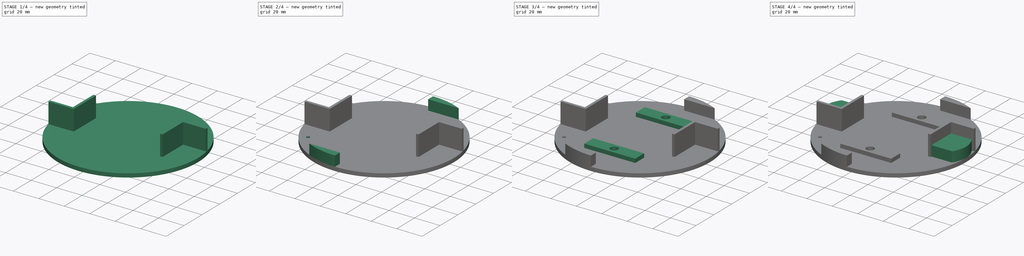
[diagram: build sequence overview — one tinted view per stage of 4, left to right]
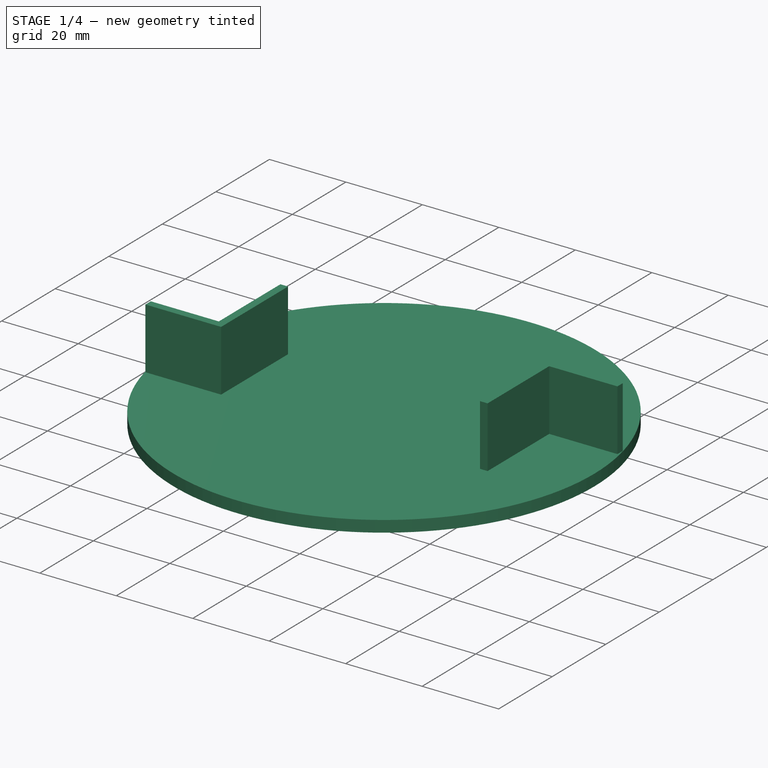
[diagram: stage 1 of 4 — iso view after this stage's code; geometry added in this stage tinted green]
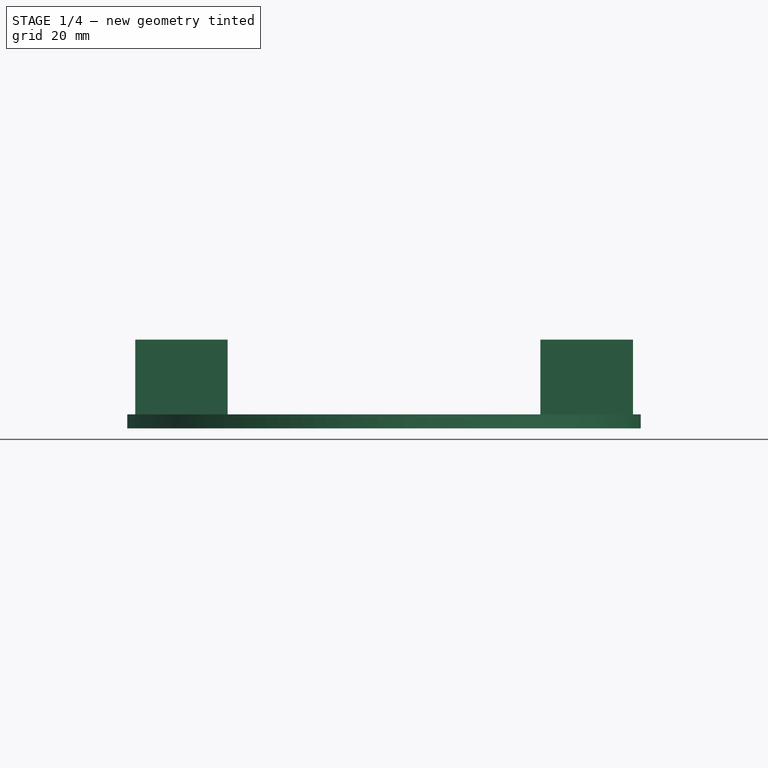
[diagram: stage 1 of 4 — front view after this stage's code; geometry added in this stage tinted green]
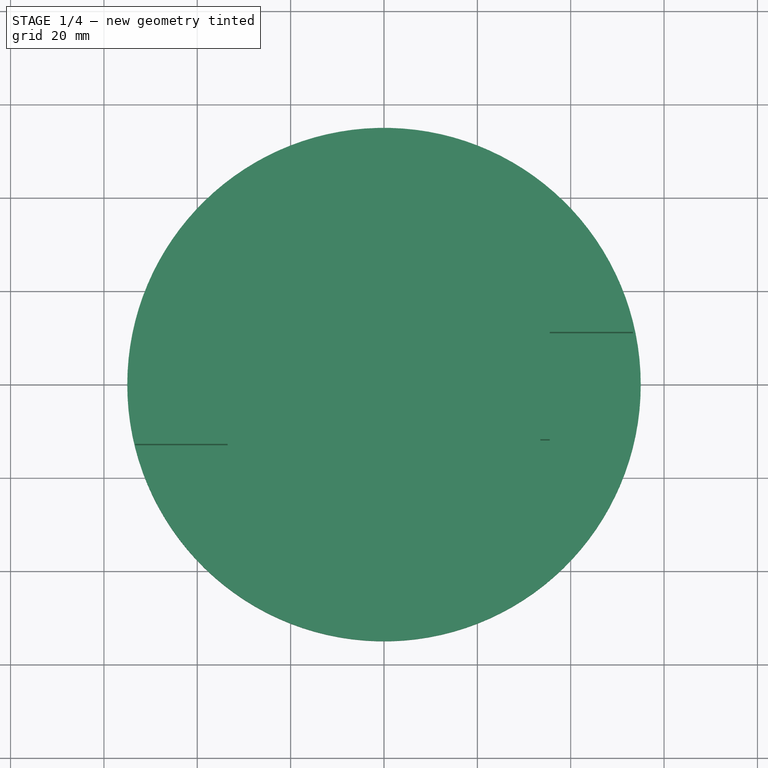
[diagram: stage 1 of 4 — top view after this stage's code; geometry added in this stage tinted green]
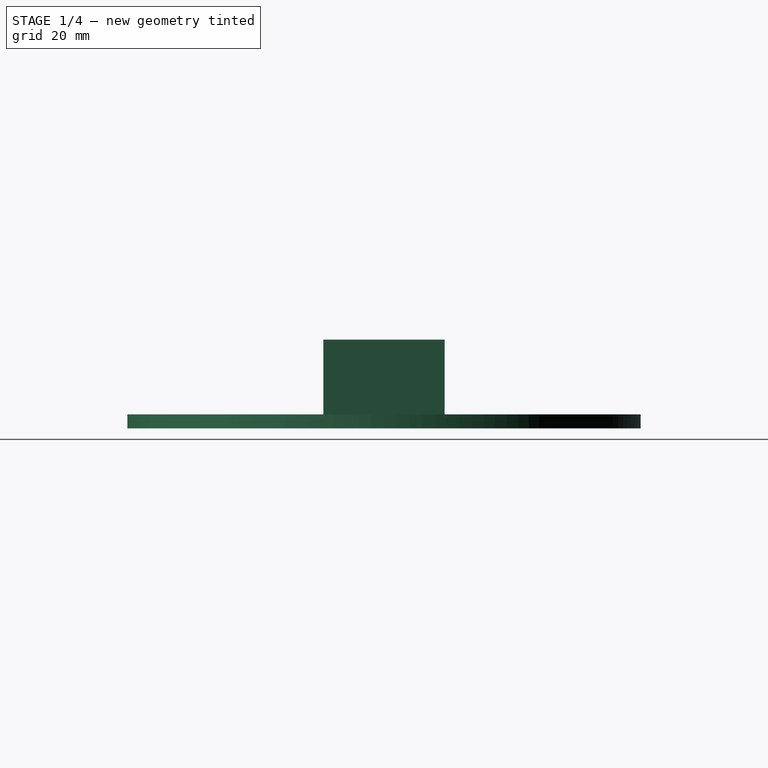
[diagram: stage 1 of 4 — right view after this stage's code; geometry added in this stage tinted green]
FCSTD DOCUMENT  (FreeCAD 0.21R33668 +26 (Git))
Label: board_bot
License: All rights reserved
LicenseURL: https://en.wikipedia.org/wiki/All_rights_reserved
objects: Sketcher::SketchObject×8, PartDesign::Pad×5, PartDesign::Pocket×3, PartDesign::Mirrored×1, PartDesign::Body×1
note: 26 computed .brp shape members not serialized (recipe doc carries the construction recipe); baked Part::Feature solids carry a one-line shape summary decoded from their .brp

FEATURE [Sketcher::SketchObject] Sketch
  FullyConstrained = false
  MapMode = 5
  Support = -> [XY_Plane]
  sketch-geometry (2):
    g0: Circle CenterX=0 CenterY=0 CenterZ=0 NormalX=0 NormalY=0 NormalZ=1 AngleXU=0 Radius=55
    g1: GeomPoint X=-46.4818 Y=29.4015 Z=0
  constraints (3):
    c: Coincident(g0,g-1)
    c: PointOnObject(g1,g0)
    c: Distance(g1,g0) = 55
FEATURE [PartDesign::Pad] Pad
  Direction = (0,0,1)
  Length = 3
  Length2 = 10
  Profile = -> Sketch
  ReferenceAxis = -> Sketch [N_Axis]
  Type = 0
FEATURE [Sketcher::SketchObject] Sketch001
  FullyConstrained = false
  MapMode = 5
  Placement = pos=(0,0,3) rot=(0,0,1;0rad)
  Support = -> [Pad]
  sketch-geometry (27):
    g0: LineSegment StartX=35.5 StartY=11 StartZ=0 EndX=35.5 EndY=-54 EndZ=0
    g1: LineSegment StartX=35.5 StartY=-54 StartZ=0 EndX=55 EndY=-54 EndZ=0
    g2: LineSegment StartX=55 StartY=-54 StartZ=0 EndX=55 EndY=11 EndZ=0
    g3: LineSegment StartX=55 StartY=11 StartZ=0 EndX=35.5 EndY=11 EndZ=0
    g4: GeomPoint X=35.5 Y=0 Z=0
    g5: LineSegment StartX=0 StartY=0 StartZ=0 EndX=35.5 EndY=0 EndZ=0
    g6: LineSegment StartX=33.5 StartY=0 StartZ=0 EndX=33.5 EndY=13 EndZ=0
    g7: LineSegment StartX=33.5 StartY=13 StartZ=0 EndX=53.3454 EndY=13 EndZ=0
    g8: LineSegment StartX=53.3454 StartY=13 StartZ=0 EndX=53.3454 EndY=11 EndZ=0
    g9: LineSegment StartX=53.3454 StartY=11 StartZ=0 EndX=35.5 EndY=11 EndZ=0
    g10: LineSegment StartX=35.5 StartY=11 StartZ=0 EndX=35.5 EndY=-0.0056844 EndZ=0
    g11: LineSegment StartX=-55 StartY=54 StartZ=0 EndX=-35.5 EndY=54 EndZ=0
    g12: LineSegment StartX=-35.5 StartY=54 StartZ=0 EndX=-35.5 EndY=-11 EndZ=0
    g13: LineSegment StartX=-35.5 StartY=-11 StartZ=0 EndX=-55 EndY=-11 EndZ=0
    g14: LineSegment StartX=-55 StartY=-11 StartZ=0 EndX=-55 EndY=54 EndZ=0
    g15: LineSegment StartX=-35.5 StartY=0 StartZ=0 EndX=0 EndY=0 EndZ=0
    g16: LineSegment StartX=-33.5 StartY=0 StartZ=0 EndX=-33.5 EndY=-13 EndZ=0
    g17: LineSegment StartX=-33.5 StartY=-13 StartZ=0 EndX=-53.2936 EndY=-13 EndZ=0
    g18: LineSegment StartX=-53.2936 StartY=-13 StartZ=0 EndX=-53.2936 EndY=-11 EndZ=0
    g19: LineSegment StartX=-53.2936 StartY=-11 StartZ=0 EndX=-35.5 EndY=-11 EndZ=0
    g20: LineSegment StartX=-35.5 StartY=-11 StartZ=0 EndX=-35.5 EndY=0.00121246 EndZ=0
    g21: LineSegment StartX=-33.5 StartY=0 StartZ=0 EndX=-33.5 EndY=12 EndZ=0
    g22: LineSegment StartX=-35.5 StartY=0.00121246 StartZ=0 EndX=-35.5 EndY=12 EndZ=0
    g23: LineSegment StartX=-35.5 StartY=12 StartZ=0 EndX=-33.5 EndY=12 EndZ=0
    g24: LineSegment StartX=33.5 StartY=0 StartZ=0 EndX=33.5 EndY=-12 EndZ=0
    g25: LineSegment StartX=35.5 StartY=-0.0056844 StartZ=0 EndX=35.5 EndY=-12 EndZ=0
    g26: LineSegment StartX=33.5 StartY=-12 StartZ=0 EndX=35.5 EndY=-12 EndZ=0
  constraints (73):
    c: Vertical(g0)
    c: Coincident(g1,g0)
    c: Horizontal(g1)
    c: Coincident(g2,g1)
    c: Vertical(g2)
    c: Coincident(g3,g2)
    c: Coincident(g3,g0)
    c: Horizontal(g3)
    c: Distance(g3) = 19.5
    c: Distance(g2) = 65
    c: PointOnObject(g4,g0)
    c: Distance(g0,g4) = 11
    c: Coincident(g5,g-1)
    c: Coincident(g5,g4)
    c: Horizontal(g5)
    c: Distance(g5) = 35.5
    c: PointOnObject(g6,g5)
    c: Vertical(g6)
    c: Coincident(g7,g6)
    c: Horizontal(g7)
    c: Coincident(g8,g7)
    c: PointOnObject(g8,g3)
    c: Vertical(g8)
    c: Coincident(g9,g8)
    c: Coincident(g9,g0)
    c: Coincident(g10,g9)
    c: Distance(g8) = 2
    c: Coincident(g11,g12)
    c: Coincident(g12,g13)
    c: Coincident(g13,g14)
    c: Coincident(g14,g11)
    c: Horizontal(g11)
    c: Horizontal(g13)
    c: Vertical(g12)
    c: Vertical(g14)
    c: Distance(g14) = 65
    c: Distance(g11) = 19.5
    c: PointOnObject(g15,g12)
    c: Coincident(g15,g5)
    c: Horizontal(g15)
    c: Distance(g15) = 35.5
    c: Distance(g15,g12) = 11
    c: PointOnObject(g16,g15)
    c: Vertical(g16)
    c: Coincident(g17,g16)
    c: Horizontal(g17)
    c: Coincident(g18,g17)
    c: PointOnObject(g18,g13)
    c: Vertical(g18)
    c: Distance(g18) = 2
    c: Coincident(g19,g18)
    c: Coincident(g19,g12)
    c: Coincident(g20,g19)
    c: Coincident(g21,g16)
    c: Vertical(g21)
    c: Coincident(g22,g20)
    c: PointOnObject(g22,g12)
    c: Vertical(g22)
    c: Distance(g20,g16) = 2
    c: Coincident(g23,g22)
    c: Coincident(g23,g21)
    c: Horizontal(g23)
    c: Distance(g21) = 12
    c: Distance(g6,g10) = 2
    c: Coincident(g24,g6)
    c: Vertical(g24)
    c: Coincident(g25,g10)
    c: PointOnObject(g25,g0)
    c: Vertical(g25)
    c: Coincident(g26,g24)
    c: Coincident(g26,g25)
    c: Horizontal(g26)
    c: Distance(g24) = 12
FEATURE [PartDesign::Pad] Pad001
  BaseFeature = -> Pad
  Direction = (0,0,1)
  Length = 16
  Length2 = 10
  Profile = -> Sketch001
  ReferenceAxis = -> Sketch001 [N_Axis]
  Type = 0
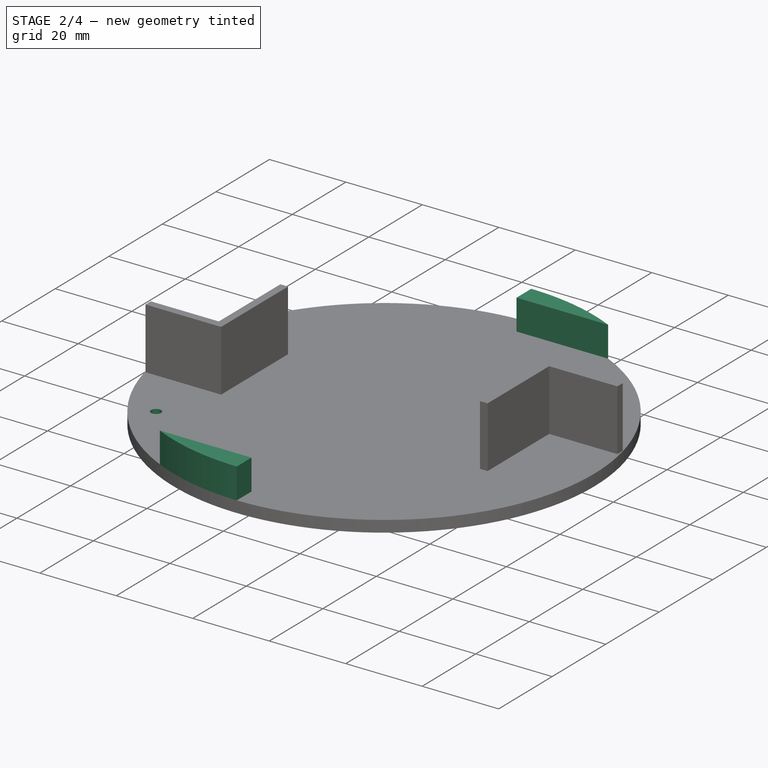
[diagram: stage 2 of 4 — iso view after this stage's code; geometry added in this stage tinted green]
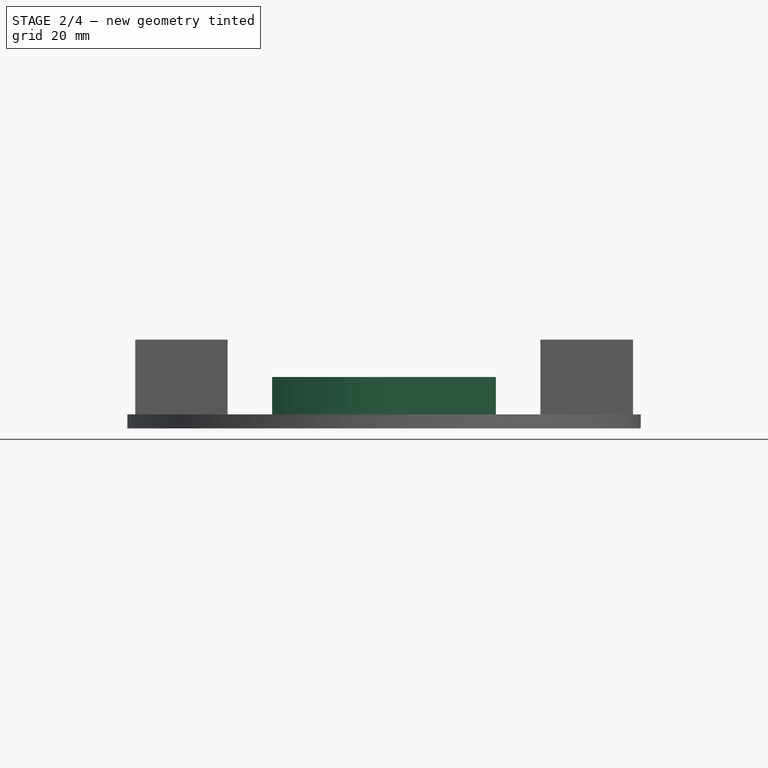
[diagram: stage 2 of 4 — front view after this stage's code; geometry added in this stage tinted green]
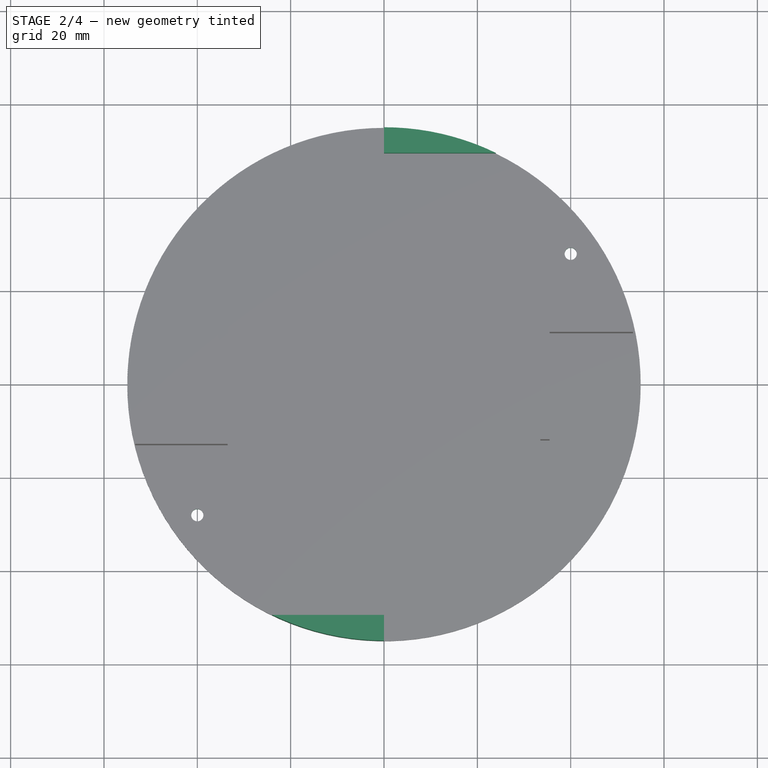
[diagram: stage 2 of 4 — top view after this stage's code; geometry added in this stage tinted green]
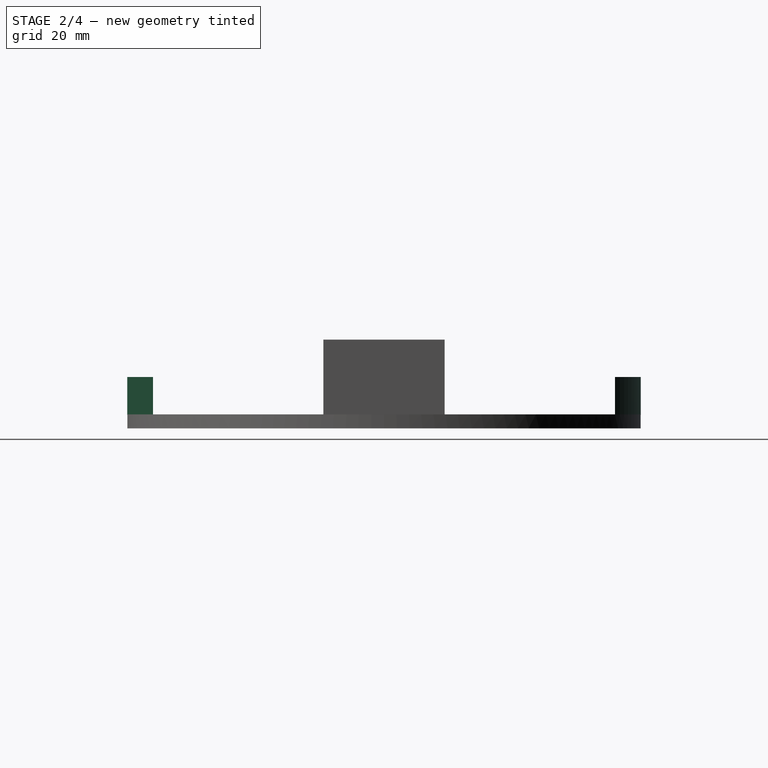
[diagram: stage 2 of 4 — right view after this stage's code; geometry added in this stage tinted green]
FEATURE [Sketcher::SketchObject] Sketch002
  FullyConstrained = false
  MapMode = 5
  Placement = pos=(0,0,3) rot=(0,0,1;0rad)
  Support = -> [Pad001]
  sketch-geometry (15):
    g0: LineSegment StartX=-32.5 StartY=49.5 StartZ=0 EndX=32.5 EndY=49.5 EndZ=0
    g1: LineSegment StartX=32.5 StartY=49.5 StartZ=0 EndX=32.5 EndY=-49.5 EndZ=0
    g2: GeomPoint X=5.3126e-12 Y=49.5 Z=0
    g3: GeomPoint X=32.5 Y=0 Z=0
    g4: ArcOfCircle CenterX=0 CenterY=0 CenterZ=0 NormalX=0 NormalY=0 NormalZ=1 AngleXU=0 Radius=55 StartAngle=4.26136 EndAngle=4.71239
    g5: GeomPoint X=-0.260933 Y=-54.9994 Z=0
    g6: GeomPoint X=35.5 Y=0 Z=0
    g7: GeomPoint X=-35.5 Y=0 Z=0
    g8: ArcOfCircle CenterX=0 CenterY=0 CenterZ=0 NormalX=0 NormalY=0 NormalZ=1 AngleXU=0 Radius=55 StartAngle=1.11977 EndAngle=1.5708
    g9: GeomPoint X=0 Y=55 Z=0
    g10: LineSegment StartX=-23.9739 StartY=-49.5 StartZ=0 EndX=-1.07e-14 EndY=-49.5 EndZ=0
    g11: LineSegment StartX=-1.07e-14 StartY=-49.5 StartZ=0 EndX=-1.07e-14 EndY=-55 EndZ=0
    g12: LineSegment StartX=23.9739 StartY=49.5 StartZ=0 EndX=3.6e-15 EndY=49.5 EndZ=0
    g13: LineSegment StartX=3.6e-15 StartY=49.5 StartZ=0 EndX=3.6e-15 EndY=55 EndZ=0
    g14: LineSegment StartX=32.5 StartY=-49.5 StartZ=0 EndX=0 EndY=-49.5 EndZ=0
  constraints (37):
    c: Coincident(g0,g1)
    c: Horizontal(g0)
    c: Vertical(g1)
    c: Distance(g1) = 99
    c: Distance(g0) = 65
    c: PointOnObject(g2,g0)
    c: Distance(g-1,g2) = 49.5
    c: PointOnObject(g3,g1)
    c: PointOnObject(g3,g-1)
    c: Distance(g-1,g3) = 32.5
    c: Coincident(g4,g-1)
    c: PointOnObject(g5,g4)
    c: Distance(g5,g4) = 55
    c: PointOnObject(g6,g-1)
    c: Distance(g4,g6) = 35.5
    c: PointOnObject(g7,g-1)
    c: Distance(g7,g4) = 35.5
    c: Coincident(g8,g4)
    c: PointOnObject(g9,g8)
    c: Distance(g9,g4) = 55
    c: Coincident(g10,g4)
    c: Horizontal(g10)
    c: Coincident(g11,g10)
    c: Coincident(g11,g4)
    c: Vertical(g11)
    c: Coincident(g12,g8)
    c: Horizontal(g12)
    c: Coincident(g13,g12)
    c: Coincident(g13,g8)
    c: Vertical(g13)
    c: PointOnObject(g8,g-2)
    c: PointOnObject(g12,g0)
    c: Coincident(g14,g1)
    c: PointOnObject(g14,g-2)
    c: Horizontal(g14)
    c: PointOnObject(g10,g-2)
    c: PointOnObject(g10,g14)
FEATURE [PartDesign::Pad] Pad002
  BaseFeature = -> Pad001
  Direction = (0,0,1)
  Length = 8
  Length2 = 10
  Profile = -> Sketch002
  ReferenceAxis = -> Sketch002 [N_Axis]
  Type = 0
FEATURE [Sketcher::SketchObject] Sketch003
  FullyConstrained = false
  MapMode = 5
  Placement = pos=(0,0,3) rot=(0,0,1;0rad)
  Support = -> [Pad002]
  sketch-geometry (22):
    g0: Circle CenterX=-45 CenterY=-18 CenterZ=0 NormalX=0 NormalY=0 NormalZ=1 AngleXU=0 Radius=1.3
    g1: GeomPoint X=-45.1583 Y=-16.7097 Z=0
    g2: GeomPoint X=0 Y=-18 Z=0
    g3: LineSegment StartX=-45 StartY=-18 StartZ=0 EndX=0 EndY=-18 EndZ=0
    g4: Circle CenterX=45 CenterY=18 CenterZ=0 NormalX=0 NormalY=0 NormalZ=1 AngleXU=0 Radius=1.3
    g5: GeomPoint X=0 Y=18 Z=0
    g6: LineSegment StartX=0 StartY=18 StartZ=0 EndX=45 EndY=18 EndZ=0
    g7: GeomPoint X=43.9428 Y=18.7565 Z=0
    g8: Circle CenterX=-45 CenterY=-18 CenterZ=0 NormalX=0 NormalY=0 NormalZ=1 AngleXU=0 Radius=6
    g9: GeomPoint X=-50.7519 Y=-16.2924 Z=0
    g10: Circle CenterX=45 CenterY=18 CenterZ=0 NormalX=0 NormalY=0 NormalZ=1 AngleXU=0 Radius=6
    g11: GeomPoint X=50.6556 Y=20.0035 Z=0
    g12: Circle CenterX=40 CenterY=28 CenterZ=0 NormalX=0 NormalY=0 NormalZ=1 AngleXU=0 Radius=6
    g13: Circle CenterX=-40 CenterY=-28 CenterZ=0 NormalX=0 NormalY=0 NormalZ=1 AngleXU=0 Radius=6
    g14: GeomPoint X=35.6448 Y=32.127 Z=0
    g15: GeomPoint X=-34.8311 Y=-31.0467 Z=0
    g16: LineSegment StartX=-40 StartY=-28 StartZ=0 EndX=0 EndY=-28 EndZ=0
    g17: LineSegment StartX=40 StartY=28 StartZ=0 EndX=0 EndY=28 EndZ=0
    g18: Circle CenterX=-40 CenterY=-28 CenterZ=0 NormalX=0 NormalY=0 NormalZ=1 AngleXU=0 Radius=1.3
    g19: Circle CenterX=40 CenterY=28 CenterZ=0 NormalX=0 NormalY=0 NormalZ=1 AngleXU=0 Radius=1.3
    g20: GeomPoint X=-40.4398 Y=-29.2233 Z=0
    g21: GeomPoint X=39.2659 Y=29.0729 Z=0
  constraints (42):
    c: PointOnObject(g1,g0)
    c: PointOnObject(g2,g-2)
    c: Coincident(g3,g0)
    c: Coincident(g3,g2)
    c: Horizontal(g3)
    c: Distance(g3) = 45
    c: Distance(g1,g0) = 1.3
    c: Distance(g-1,g2) = 18
    c: PointOnObject(g5,g-2)
    c: Coincident(g6,g5)
    c: Coincident(g6,g4)
    c: Horizontal(g6)
    c: Distance(g6) = 45
    c: Distance(g5,g-1) = 18
    c: PointOnObject(g7,g4)
    c: Distance(g7,g4) = 1.3
    c: Coincident(g8,g0)
    c: PointOnObject(g9,g8)
    c: Distance(g9,g0) = 6
    c: Coincident(g10,g4)
    c: PointOnObject(g11,g10)
    c: Distance(g4,g11) = 6
    c: PointOnObject(g14,g12)
    c: PointOnObject(g15,g13)
    c: Distance(g13,g15) = 6
    c: Distance(g12,g14) = 6
    c: Coincident(g16,g13)
    c: PointOnObject(g16,g-2)
    c: Horizontal(g16)
    c: Coincident(g17,g12)
    c: PointOnObject(g17,g-2)
    c: Horizontal(g17)
    c: Distance(g17) = 40
    c: Distance(g17,g-1) = 28
    c: Distance(g-1,g16) = 28
    c: Distance(g16) = 40
    c: Coincident(g18,g13)
    c: Coincident(g19,g12)
    c: PointOnObject(g20,g18)
    c: Distance(g20,g13) = 1.3
    c: PointOnObject(g21,g19)
    c: Distance(g21,g12) = 1.3
FEATURE [PartDesign::Pocket] Pocket
  BaseFeature = -> Pad002
  Direction = (0,0,-1)
  Length = 5
  Length2 = 5
  Profile = -> Sketch003
  ReferenceAxis = -> Sketch003 [N_Axis]
  Type = 0
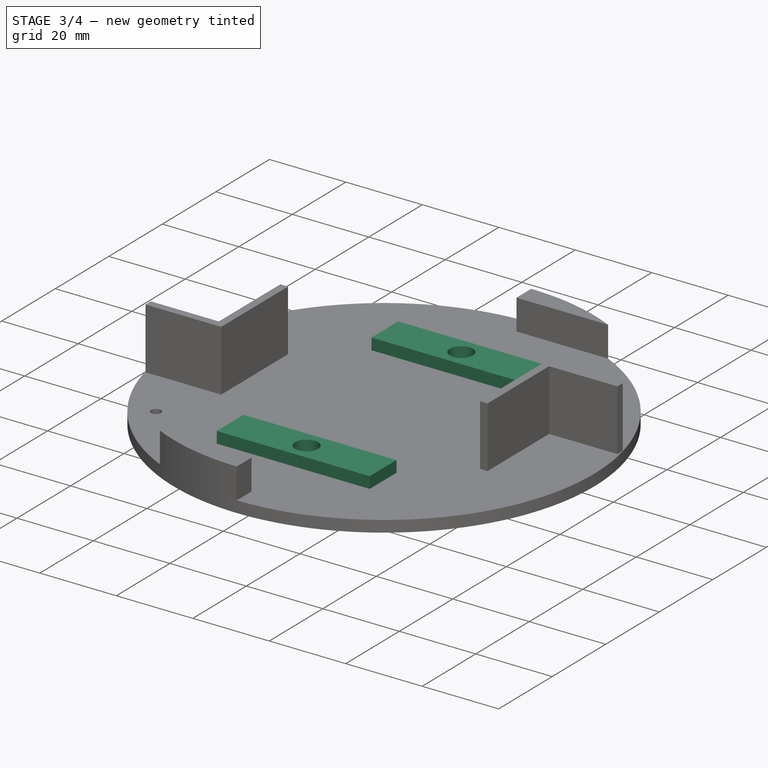
[diagram: stage 3 of 4 — iso view after this stage's code; geometry added in this stage tinted green]
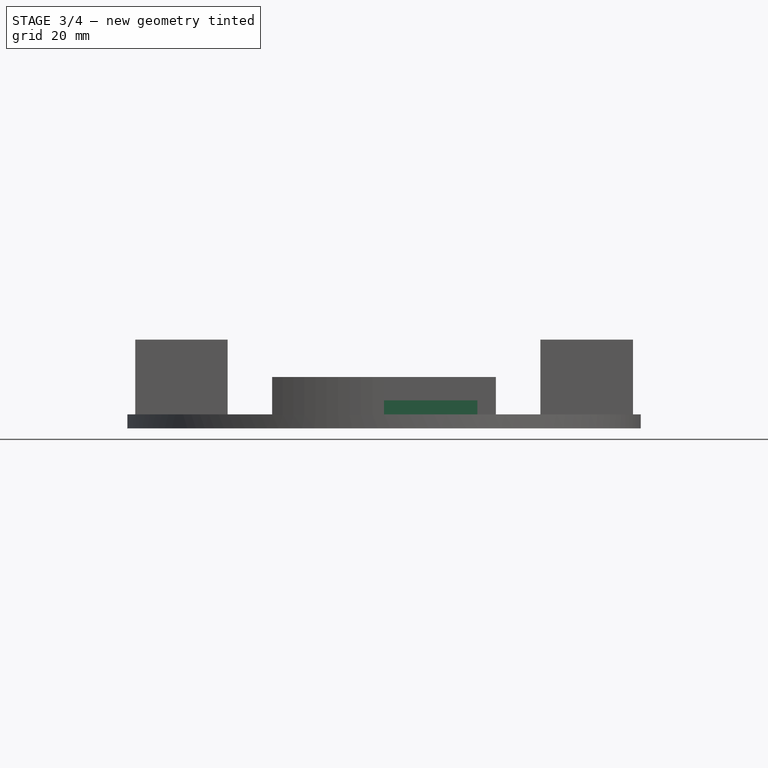
[diagram: stage 3 of 4 — front view after this stage's code; geometry added in this stage tinted green]
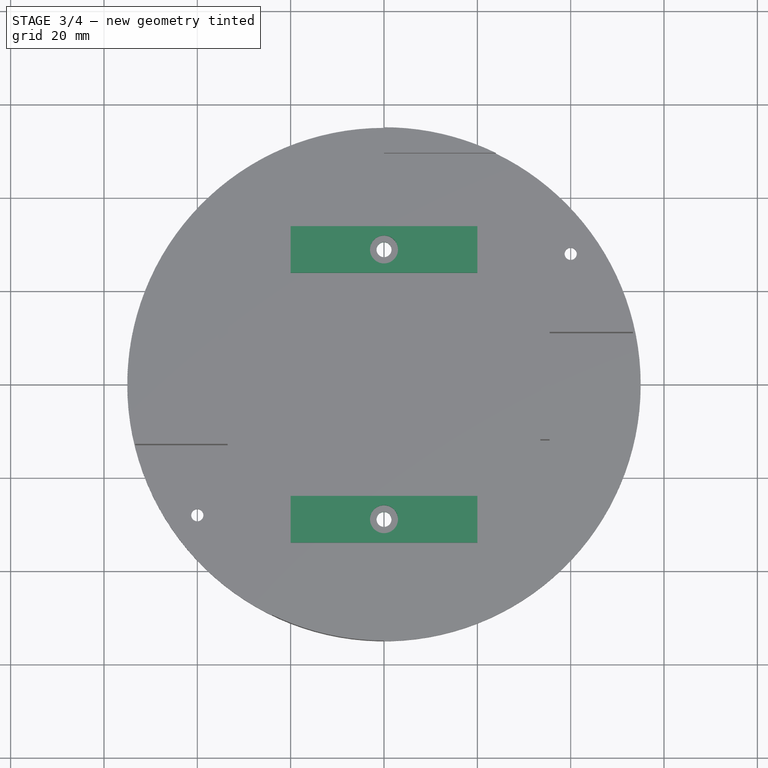
[diagram: stage 3 of 4 — top view after this stage's code; geometry added in this stage tinted green]
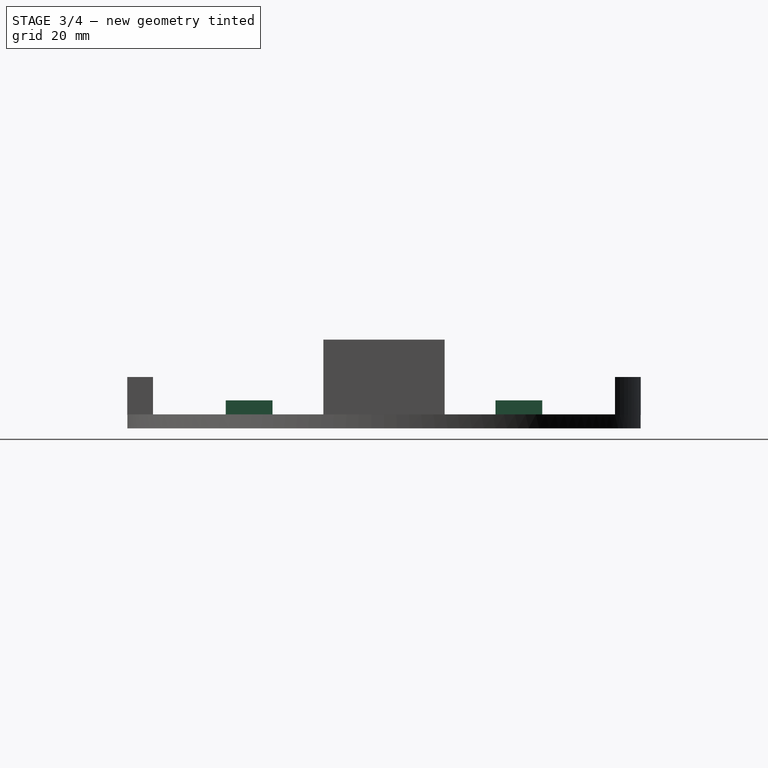
[diagram: stage 3 of 4 — right view after this stage's code; geometry added in this stage tinted green]
FEATURE [Sketcher::SketchObject] Sketch004
  FullyConstrained = false
  MapMode = 5
  Placement = pos=(0,0,0) rot=(1,0,0;3.14159rad)
  Support = -> [Pocket]
  sketch-geometry (28):
    g0: LineSegment StartX=-38 StartY=-39.5 StartZ=0 EndX=38 EndY=-39.5 EndZ=0
    g1: LineSegment StartX=38 StartY=-39.5 StartZ=0 EndX=38 EndY=39.5 EndZ=0
    g2: LineSegment StartX=38 StartY=39.5 StartZ=0 EndX=-38 EndY=39.5 EndZ=0
    g3: LineSegment StartX=-38 StartY=39.5 StartZ=0 EndX=-38 EndY=-39.5 EndZ=0
    g4: GeomPoint X=38 Y=-5e-15 Z=0
    g5: LineSegment StartX=0 StartY=0 StartZ=0 EndX=38 EndY=-5e-15 EndZ=0
    g6: Circle CenterX=2.4e-15 CenterY=-28.9 CenterZ=0 NormalX=0 NormalY=0 NormalZ=1 AngleXU=0 Radius=1.6
    g7: GeomPoint X=-1.5853 Y=-28.6836 Z=0
    g8: GeomPoint X=1.8e-15 Y=-39.5 Z=0
    g9: LineSegment StartX=1.8e-15 StartY=-39.5 StartZ=0 EndX=2.4e-15 EndY=-28.9 EndZ=0
    g10: Circle CenterX=6.5e-15 CenterY=28.9 CenterZ=0 NormalX=0 NormalY=0 NormalZ=1 AngleXU=0 Radius=1.6
    g11: GeomPoint X=0.929182 Y=30.2025 Z=0
    g12: GeomPoint X=8.5e-15 Y=39.5 Z=0
    g13: LineSegment StartX=6.5e-15 StartY=28.9 StartZ=0 EndX=8.5e-15 EndY=39.5 EndZ=0
    g14: LineSegment StartX=-20 StartY=-23.9 StartZ=0 EndX=20 EndY=-23.9 EndZ=0
    g15: LineSegment StartX=20 StartY=-23.9 StartZ=0 EndX=20 EndY=-33.9 EndZ=0
    g16: LineSegment StartX=20 StartY=-33.9 StartZ=0 EndX=-20 EndY=-33.9 EndZ=0
    g17: LineSegment StartX=-20 StartY=-33.9 StartZ=0 EndX=-20 EndY=-23.9 EndZ=0
    g18: GeomPoint X=2.4e-15 Y=-23.9 Z=0
    g19: GeomPoint X=20 Y=-28.9 Z=0
    g20: LineSegment StartX=2.4e-15 StartY=-28.9 StartZ=0 EndX=2.4e-15 EndY=-23.9 EndZ=0
    g21: LineSegment StartX=-20 StartY=33.9 StartZ=0 EndX=20 EndY=33.9 EndZ=0
    g22: LineSegment StartX=20 StartY=33.9 StartZ=0 EndX=20 EndY=23.9 EndZ=0
    g23: LineSegment StartX=20 StartY=23.9 StartZ=0 EndX=-20 EndY=23.9 EndZ=0
    g24: LineSegment StartX=-20 StartY=23.9 StartZ=0 EndX=-20 EndY=33.9 EndZ=0
    g25: GeomPoint X=-20 Y=28.9 Z=0
    g26: GeomPoint X=6.5e-15 Y=23.9 Z=0
    g27: LineSegment StartX=6.5e-15 StartY=23.9 StartZ=0 EndX=6.5e-15 EndY=28.9 EndZ=0
  constraints (68):
    c: Coincident(g0,g1)
    c: Coincident(g1,g2)
    c: Coincident(g2,g3)
    c: Coincident(g3,g0)
    c: Angle(g2,g1) = 1.5708
    c: Angle(g0,g3) = 1.5708
    c: Distance(g1) = 79
    c: Angle(g3,g2) = 1.5708
    c: Distance(g2) = 76
    c: PointOnObject(g4,g1)
    c: Distance(g4,g1) = 39.5
    c: Coincident(g5,g-1)
    c: Coincident(g5,g4)
    c: Angle(g1,g5) = 1.5708
    c: Distance(g5) = 38
    c: PointOnObject(g7,g6)
    c: Distance(g6,g7) = 1.6
    c: PointOnObject(g8,g0)
    c: Distance(g8,g0) = 38
    c: Coincident(g9,g8)
    c: Coincident(g9,g6)
    c: Angle(g0,g9) = 1.5708
    c: Distance(g9) = 10.6
    c: PointOnObject(g11,g10)
    c: Distance(g11,g10) = 1.6
    c: PointOnObject(g12,g2)
    c: Distance(g12,g1) = 38
    c: Coincident(g13,g10)
    c: Coincident(g13,g12)
    c: Angle(g2,g13) = 1.5708
    c: Distance(g13) = 10.6
    c: Horizontal(g0)
    c: Coincident(g14,g15)
    c: Coincident(g15,g16)
    c: Coincident(g16,g17)
    c: Coincident(g17,g14)
    c: Horizontal(g14)
    c: Horizontal(g16)
    c: Vertical(g15)
    c: Vertical(g17)
    c: Distance(g14) = 40
    c: Distance(g15) = 10
    c: PointOnObject(g18,g14)
    c: Distance(g18,g14) = 20
    c: PointOnObject(g19,g15)
    c: Distance(g19,g14) = 5
    c: Coincident(g20,g6)
    c: Coincident(g20,g18)
    c: Vertical(g20)
    c: Distance(g20) = 5
    c: Coincident(g21,g22)
    c: Coincident(g22,g23)
    c: Coincident(g23,g24)
    c: Coincident(g24,g21)
    c: Horizontal(g21)
    c: Horizontal(g23)
    c: Vertical(g22)
    c: Vertical(g24)
    c: Distance(g22) = 10
    c: Distance(g21) = 40
    c: PointOnObject(g25,g24)
    c: Distance(g25,g23) = 5
    c: PointOnObject(g26,g23)
    c: Distance(g26,g23) = 20
    c: Coincident(g27,g26)
    c: Coincident(g27,g10)
    c: Vertical(g27)
    c: Distance(g27) = 5
FEATURE [PartDesign::Pad] Pad003
  BaseFeature = -> Pocket
  Direction = (0,0,-1)
  Length = 6
  Length2 = 10
  Profile = -> Sketch004
  ReferenceAxis = -> Sketch004 [N_Axis]
  Reversed = true
  Type = 0
FEATURE [Sketcher::SketchObject] Sketch005
  FullyConstrained = false
  MapMode = 5
  Placement = pos=(0,0,6) rot=(0,0,1;0rad)
  Support = -> [Pad003]
  sketch-geometry (4):
    g0: Circle CenterX=0 CenterY=28.9 CenterZ=0 NormalX=0 NormalY=0 NormalZ=1 AngleXU=0 Radius=3
    g1: GeomPoint X=-1.75075 Y=31.3362 Z=0
    g2: Circle CenterX=0 CenterY=-28.9 CenterZ=0 NormalX=0 NormalY=0 NormalZ=1 AngleXU=0 Radius=3
    g3: GeomPoint X=-2.12771 Y=-26.7851 Z=0
  constraints (8):
    c: PointOnObject(g0,g-2)
    c: PointOnObject(g1,g0)
    c: Distance(g1,g0) = 3
    c: Distance(g-1,g0) = 28.9
    c: PointOnObject(g2,g-2)
    c: PointOnObject(g3,g2)
    c: Distance(g3,g2) = 3
    c: Distance(g-1,g2) = 28.9
FEATURE [PartDesign::Pocket] Pocket001
  BaseFeature = -> Pad003
  Direction = (0,0,-1)
  Length = 3
  Length2 = 5
  Profile = -> Sketch005
  ReferenceAxis = -> Sketch005 [N_Axis]
  Type = 0
FEATURE [Sketcher::SketchObject] Sketch006
  FullyConstrained = false
  MapMode = 5
  Placement = pos=(0,0,6) rot=(0,0,1;0rad)
  Support = -> [Pocket001]
  sketch-geometry (4):
    g0: Circle CenterX=0 CenterY=28.9 CenterZ=0 NormalX=0 NormalY=0 NormalZ=1 AngleXU=0 Radius=1.6
    g1: GeomPoint X=1.25621 Y=29.8909 Z=0
    g2: Circle CenterX=0 CenterY=-28.9 CenterZ=0 NormalX=0 NormalY=0 NormalZ=1 AngleXU=0 Radius=1.6
    g3: GeomPoint X=1.15093 Y=-27.7885 Z=0
  constraints (8):
    c: PointOnObject(g0,g-2)
    c: Distance(g-1,g0) = 28.9
    c: PointOnObject(g1,g0)
    c: Distance(g0,g1) = 1.6
    c: PointOnObject(g2,g-2)
    c: PointOnObject(g3,g2)
    c: Distance(g2,g3) = 1.6
    c: Distance(g2,g-1) = 28.9
FEATURE [PartDesign::Pocket] Pocket002
  BaseFeature = -> Pocket001
  Direction = (0,0,-1)
  Length = 6
  Length2 = 5
  Profile = -> Sketch006
  ReferenceAxis = -> Sketch006 [N_Axis]
  Type = 0
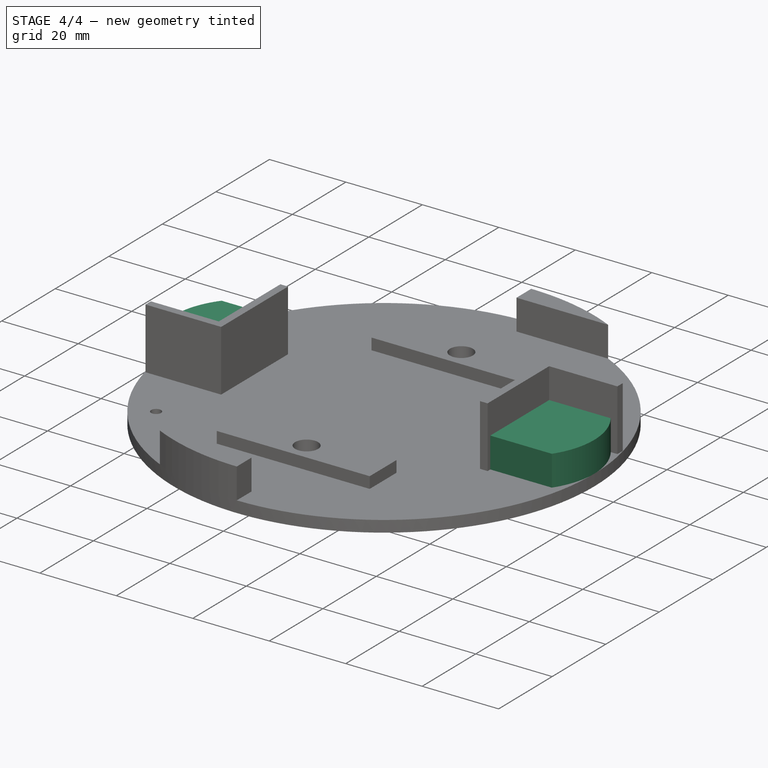
[diagram: stage 4 of 4 — iso view after this stage's code; geometry added in this stage tinted green]
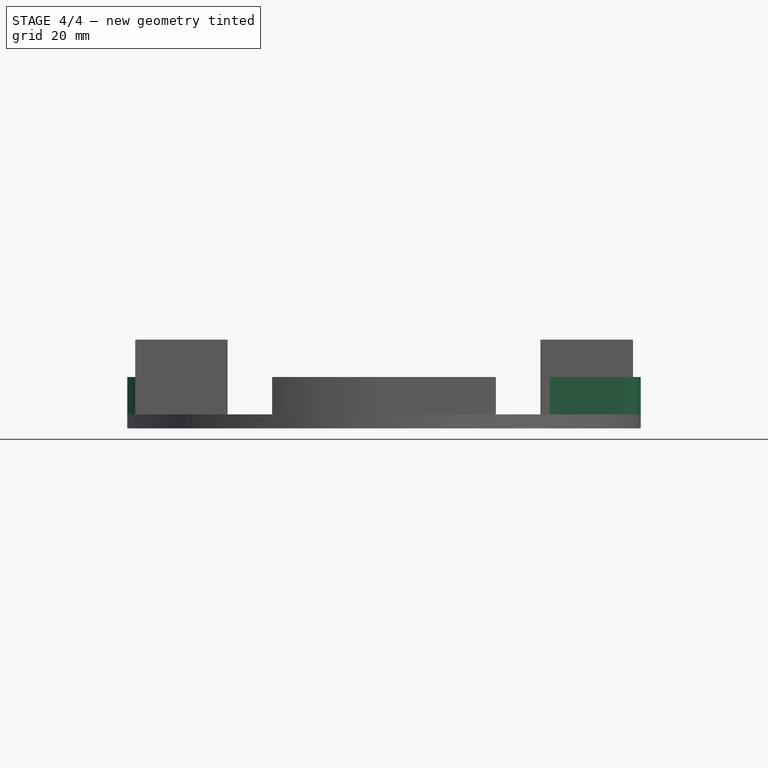
[diagram: stage 4 of 4 — front view after this stage's code; geometry added in this stage tinted green]
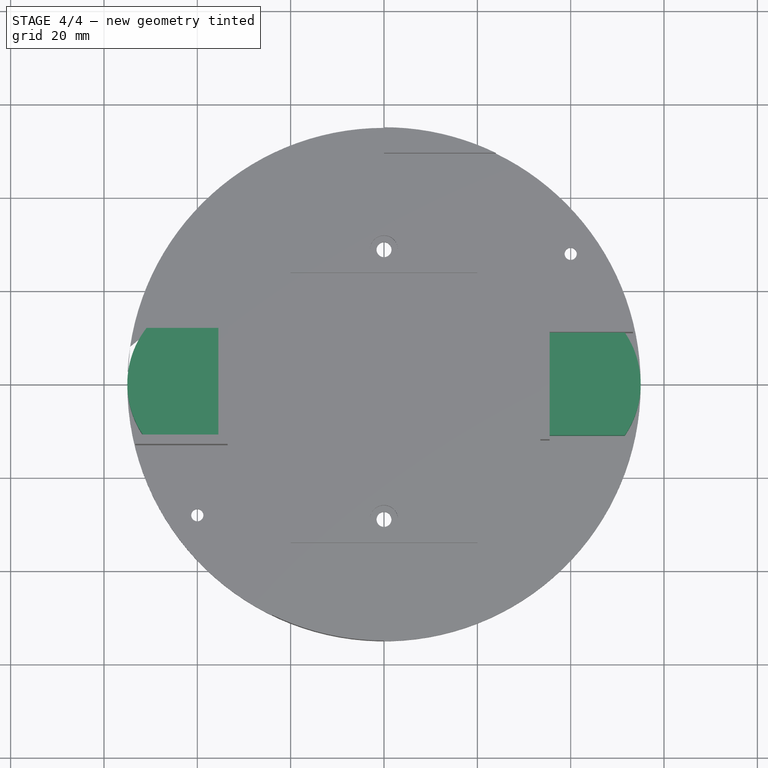
[diagram: stage 4 of 4 — top view after this stage's code; geometry added in this stage tinted green]
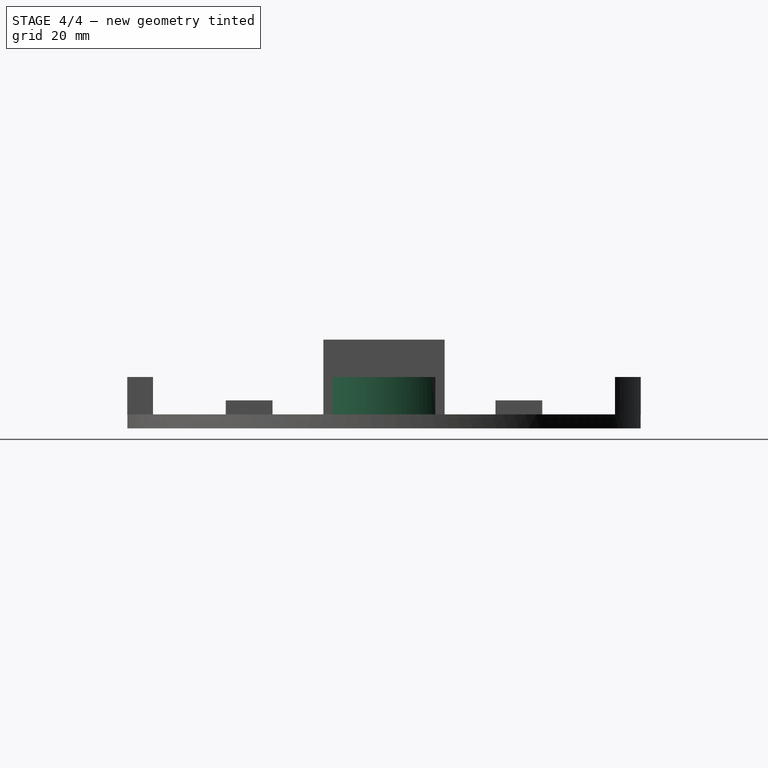
[diagram: stage 4 of 4 — right view after this stage's code; geometry added in this stage tinted green]
FEATURE [Sketcher::SketchObject] Sketch007
  FullyConstrained = true
  MapMode = 5
  Placement = pos=(0,0,3) rot=(0,0,1;0rad)
  Support = -> [Pocket002]
  sketch-geometry (7):
    g0: LineSegment StartX=-35.5 StartY=0 StartZ=0 EndX=-35.5 EndY=12 EndZ=0
    g1: LineSegment StartX=-35.5 StartY=0 StartZ=0 EndX=-35.5 EndY=-11 EndZ=0
    g2: LineSegment StartX=-35.5 StartY=-11 StartZ=0 EndX=-51.6012 EndY=-11 EndZ=0
    g3: LineSegment StartX=-35.5 StartY=12 StartZ=0 EndX=-50.8704 EndY=12 EndZ=0
    g4: LineSegment StartX=-35.5 StartY=0 StartZ=0 EndX=-55 EndY=2.4e-15 EndZ=0
    g5: ArcOfCircle CenterX=-35.5 CenterY=0 CenterZ=0 NormalX=0 NormalY=0 NormalZ=1 AngleXU=0 Radius=19.5 StartAngle=2.47872 EndAngle=3.14159
    g6: ArcOfCircle CenterX=-35.5 CenterY=0 CenterZ=0 NormalX=0 NormalY=0 NormalZ=1 AngleXU=0 Radius=19.5 StartAngle=3.14159 EndAngle=3.74094
  constraints (20):
    c: PointOnObject(g0,g-1)
    c: Vertical(g0)
    c: Coincident(g1,g0)
    c: Coincident(g2,g1)
    c: Horizontal(g2)
    c: Vertical(g1)
    c: Coincident(g3,g0)
    c: Horizontal(g3)
    c: Distance(g0) = 12
    c: Distance(g1) = 11
    c: Distance(g-1,g0) = 35.5
    c: Coincident(g4,g0)
    c: PointOnObject(g4,g-1)
    c: Distance(g4) = 19.5
    c: Coincident(g5,g0)
    c: Coincident(g5,g4)
    c: Coincident(g5,g3)
    c: Coincident(g6,g0)
    c: Coincident(g6,g2)
    c: Coincident(g6,g5)
FEATURE [PartDesign::Pad] Pad004
  BaseFeature = -> Pocket002
  Direction = (0,0,1)
  Length = 8
  Length2 = 10
  Profile = -> Sketch007
  ReferenceAxis = -> Sketch007 [N_Axis]
  Type = 0
FEATURE [PartDesign::Mirrored] Mirrored
  BaseFeature = -> Pad004
  MirrorPlane = -> Sketch007 [V_Axis]
  Originals = -> [Pad004]
FEATURE [PartDesign::Body] Body
  Group = -> [Sketch,Pad,Sketch001,Pad001,Sketch002,Pad002,Sketch003,Pocket,Sketch004,Pad003,Sketch005,Pocket001,Sketch006,Pocket002,Sketch007,Pad004,Mirrored]
  Origin = -> Origin
  Tip = -> Mirrored
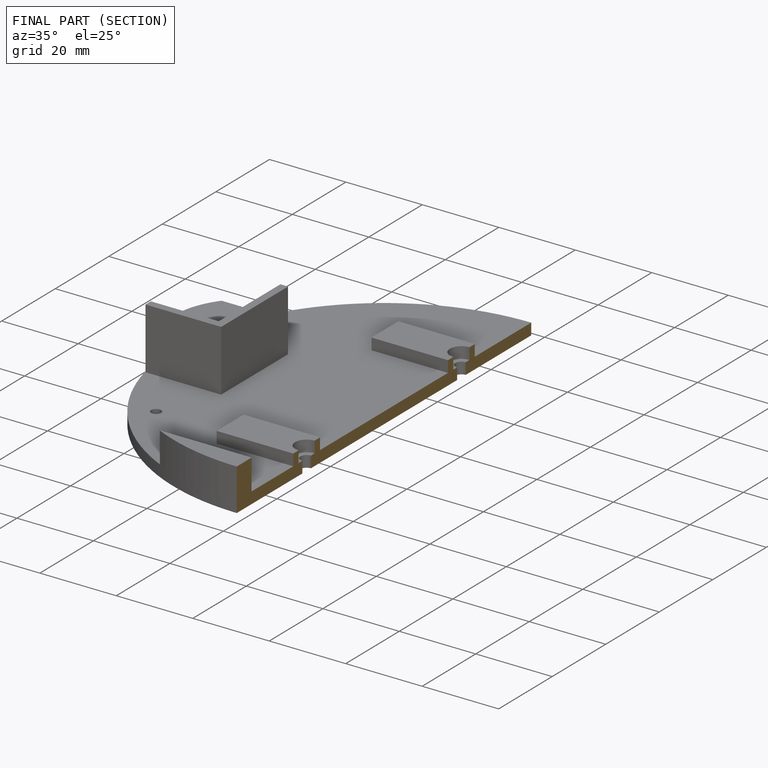
[diagram: finished part — half-section view (interior)]
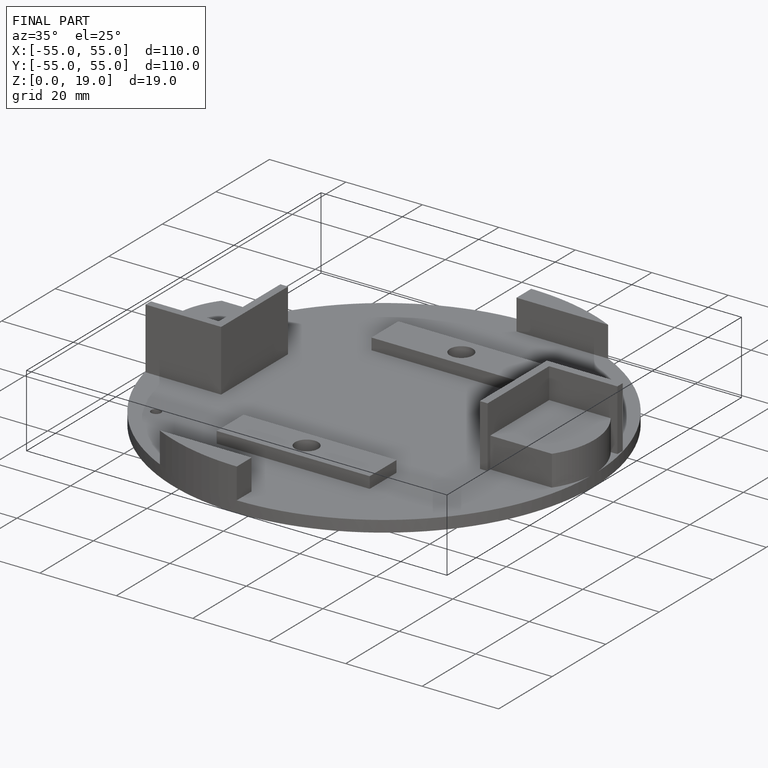
[diagram: finished part — iso view with bounding-box wireframe]
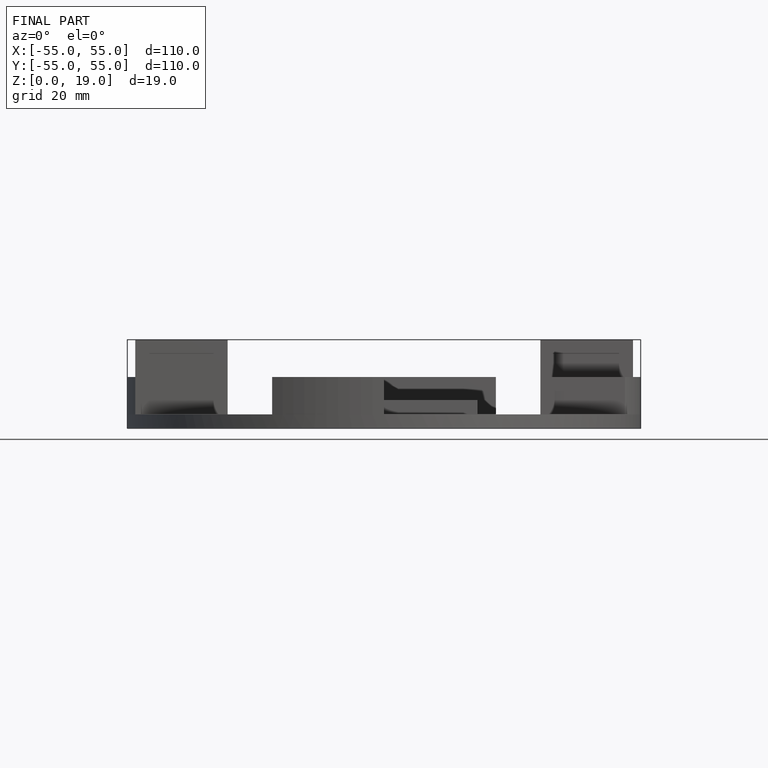
[diagram: finished part — front view with bounding-box wireframe]
